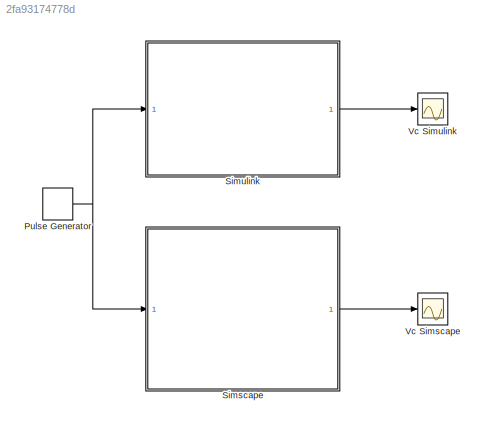
MODEL slx_2fa93174778d
KIND model
CONFIG AbsTol = auto
CONFIG EnableMultiTasking = off
CONFIG FixedStep = auto
CONFIG MaxStep = 0.000001
CONFIG MinStep = auto
CONFIG RelTol = 1e-3
CONFIG SampleTimeConstraint = Unconstrained
CONFIG SolverName = VariableStepAuto
CONFIG StartTime = 0.0
CONFIG StopTime = 3e-3
BLOCK [DiscretePulseGenerator] Pulse Generator
  Amplitude = 5
  Period = 0.002
  PulseType = Time based
  PulseWidth = 50
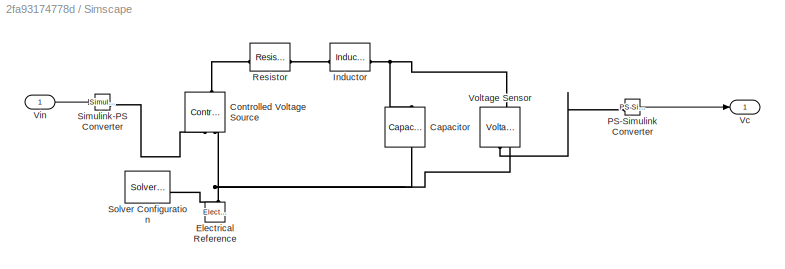
BLOCK [SubSystem] Simscape
BLOCK [Reference] Simscape/Capacitor  REF=fl_lib/Electrical/Electrical Elements/Capacitor
  NameLocation = left
  SourceBlock = fl_lib/Electrical/Electrical Elements/Capacitor
  SourceType = Capacitor
BLOCK [Reference] Simscape/Controlled Voltage Source  REF=fl_lib/Electrical/Electrical Sources/Controlled Voltage
Source
  NameLocation = right
  SourceBlock = fl_lib/Electrical/Electrical Sources/Controlled Voltage\nSource
  SourceType = Controlled Voltage\nSource
BLOCK [Reference] Simscape/Electrical Reference  REF=fl_lib/Electrical/Electrical Elements/Electrical Reference
  NameLocation = right
  SourceBlock = fl_lib/Electrical/Electrical Elements/Electrical Reference
  SourceType = Electrical Reference
BLOCK [Reference] Simscape/Inductor  REF=fl_lib/Electrical/Electrical Elements/Inductor
  SourceBlock = fl_lib/Electrical/Electrical Elements/Inductor
  SourceType = Inductor
BLOCK [Reference] Simscape/PS-Simulink Converter  REF=nesl_utility/PS-Simulink
Converter
  SourceBlock = nesl_utility/PS-Simulink\nConverter
  SourceType = PS-Simulink\nConverter
BLOCK [Reference] Simscape/Resistor  REF=fl_lib/Electrical/Electrical Elements/Resistor
  SourceBlock = fl_lib/Electrical/Electrical Elements/Resistor
  SourceType = Resistor
BLOCK [Reference] Simscape/Simulink-PS Converter  REF=nesl_utility/Simulink-PS
Converter
  SourceBlock = nesl_utility/Simulink-PS\nConverter
  SourceType = Simulink-PS\nConverter
BLOCK [Reference] Simscape/Solver Configuration  REF=nesl_utility/Solver
Configuration
  SourceBlock = nesl_utility/Solver\nConfiguration
  SourceType = Solver\nConfiguration
BLOCK [Outport] Simscape/Vc
BLOCK [Inport] Simscape/Vin
BLOCK [Reference] Simscape/Voltage Sensor  REF=fl_lib/Electrical/Electrical Sensors/Voltage Sensor
  NameLocation = right
  SourceBlock = fl_lib/Electrical/Electrical Sensors/Voltage Sensor
  SourceType = Voltage Sensor
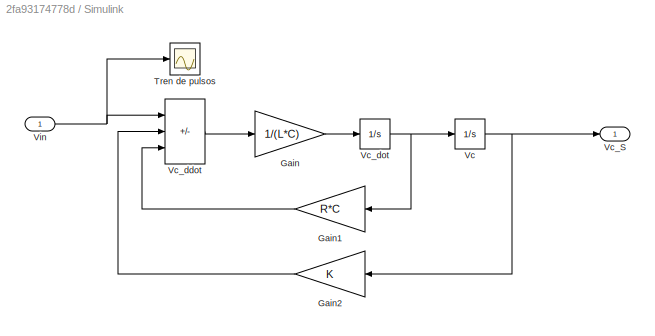
BLOCK [SubSystem] Simulink
BLOCK [Gain] Simulink/Gain
  Gain = 1/(L*C)
BLOCK [Gain] Simulink/Gain1
  Gain = R*C
  NameLocation = top
BLOCK [Gain] Simulink/Gain2
  NameLocation = top
BLOCK [Scope] Simulink/Tren de pulsos
  Floating = off
  NumInputPorts = 1
  ScopeSpecificationString = Simulink.scopes.TimeScopeBlockCfg('CurrentConfiguration', extmgr.ConfigurationSet(extmgr.Configuration('Core','General UI',true),extmgr.Configuration('Core','Source UI',true),extmgr.Configuration('Sources','WiredSimulink',true,'DataLoggingVariableName','ScopeData1'),extmgr.Configuration('Visuals','Time Domain',true,'SerializedDisplays',{struct('MinYLimReal','-0.125','MaxYLimReal','5.08563','YLabel...<+1432ch>
BLOCK [Integrator] Simulink/Vc
BLOCK [Outport] Simulink/Vc_S
BLOCK [Sum] Simulink/Vc_ddot
  IconShape = rectangular
  Inputs = |+--
BLOCK [Integrator] Simulink/Vc_dot
BLOCK [Inport] Simulink/Vin
BLOCK [Scope] Vc Simscape
  Floating = off
  NumInputPorts = 1
  ScopeSpecificationString = Simulink.scopes.TimeScopeBlockCfg('CurrentConfiguration', extmgr.ConfigurationSet(extmgr.Configuration('Core','General UI',true),extmgr.Configuration('Core','Source UI',true),extmgr.Configuration('Sources','WiredSimulink',true,'DataLoggingVariableName','ScopeData2'),extmgr.Configuration('Visuals','Time Domain',true,'SerializedDisplays',{struct('MinYLimReal','-4.18672','MaxYLimReal','9.1867','YLabe...<+1417ch>
BLOCK [Scope] Vc Simulink
  Floating = off
  NumInputPorts = 1
  ScopeSpecificationString = Simulink.scopes.TimeScopeBlockCfg('CurrentConfiguration', extmgr.ConfigurationSet(extmgr.Configuration('Core','General UI',true),extmgr.Configuration('Core','Source UI',true),extmgr.Configuration('Sources','WiredSimulink',true),extmgr.Configuration('Visuals','Time Domain',true,'SerializedDisplays',{struct('MinYLimReal','-3.2742','MaxYLimReal','8.08131','YLabelReal','','MinYLimMag','0.00000','MaxYL...<+1405ch>
NET Pulse Generator:1 -> Simscape:1, Simulink:1
LINE Simscape/PS-Simulink Converter:1 -> Simscape/Vc:1
LINE Simscape/Vin:1 -> Simscape/Simulink-PS Converter:1
LINE Simscape:1 -> Vc Simscape:1
LINE Simulink/Gain1:1 -> Simulink/Vc_ddot:3
LINE Simulink/Gain2:1 -> Simulink/Vc_ddot:2
LINE Simulink/Gain:1 -> Simulink/Vc_dot:1
NET Simulink/Vc:1 -> Simulink/Gain2:1, Simulink/Vc_S:1
LINE Simulink/Vc_ddot:1 -> Simulink/Gain:1
NET Simulink/Vc_dot:1 -> Simulink/Gain1:1, Simulink/Vc:1
NET Simulink/Vin:1 -> Simulink/Tren de pulsos:1, Simulink/Vc_ddot:1
LINE Simulink:1 -> Vc Simulink:1
PNET net1: Simscape/Capacitor:LConn1 -- Simscape/Inductor:RConn1 -- Simscape/Voltage Sensor:LConn1
PNET net2: Simscape/Capacitor:RConn1 -- Simscape/Controlled Voltage Source:RConn2 -- Simscape/Electrical Reference:LConn1 -- Simscape/Solver Configuration:RConn1 -- Simscape/Voltage Sensor:RConn2
PLINE Simscape/Controlled Voltage Source:LConn1 -- Simscape/Resistor:LConn1
PLINE Simscape/Controlled Voltage Source:RConn1 -- Simscape/Simulink-PS Converter:RConn1
PLINE Simscape/Inductor:LConn1 -- Simscape/Resistor:RConn1
PLINE Simscape/PS-Simulink Converter:LConn1 -- Simscape/Voltage Sensor:RConn1
note: NET lines group one-source signal fan-out (src -> all destinations, sorted); 1:1 wires keep LINE; PNET lines group multi-terminal physical nets as a canonical sorted terminal list (undirected conserving connections); 2-terminal nets keep the pairwise PLINE form
